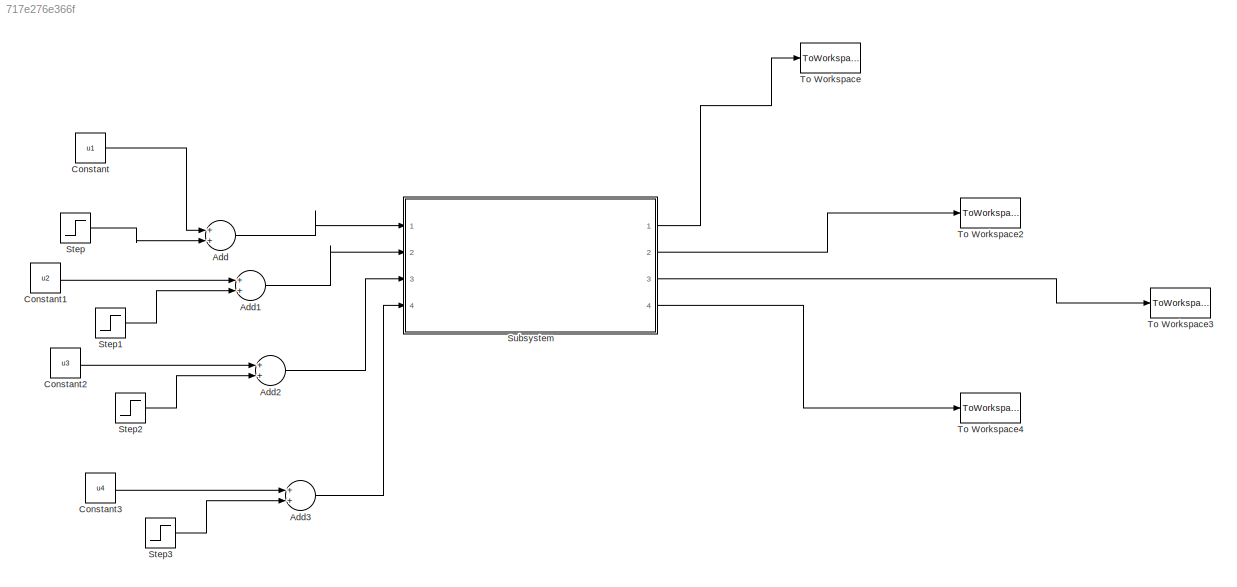
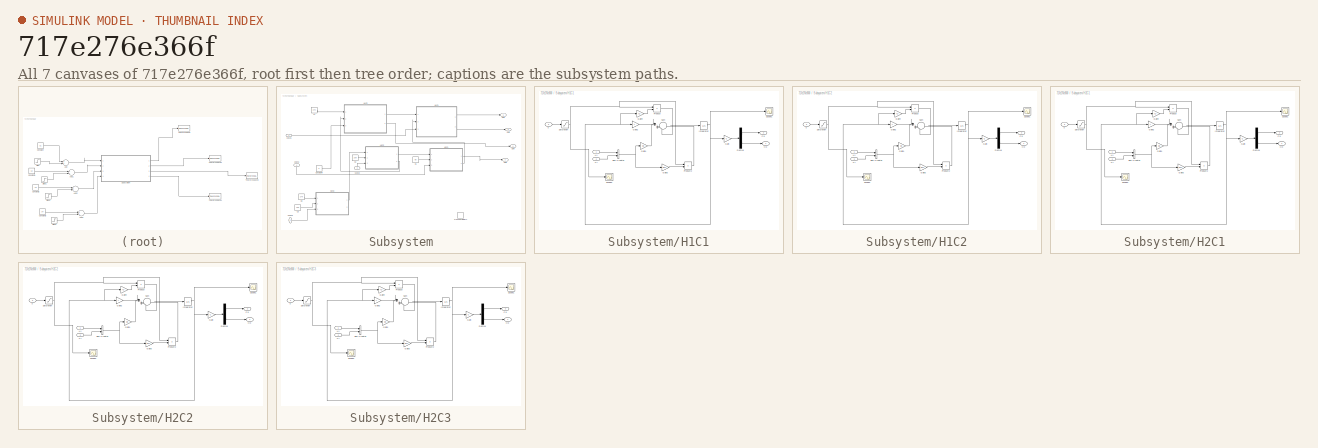
[diagram: thumbnail index - all 7 canvases of the model, root first then tree order]
MODEL slx_717e276e366f
KIND model
BLOCK [Sum] Add
  InputSameDT = off
  OutDataTypeStr = Inherit: Inherit via internal rule
  Ports = [2, 1]
  SaturateOnIntegerOverflow = off
BLOCK [Sum] Add1
  InputSameDT = off
  OutDataTypeStr = Inherit: Inherit via internal rule
  Ports = [2, 1]
  SaturateOnIntegerOverflow = off
BLOCK [Sum] Add2
  InputSameDT = off
  OutDataTypeStr = Inherit: Inherit via internal rule
  Ports = [2, 1]
  SaturateOnIntegerOverflow = off
BLOCK [Sum] Add3
  InputSameDT = off
  OutDataTypeStr = Inherit: Inherit via internal rule
  Ports = [2, 1]
  SaturateOnIntegerOverflow = off
BLOCK [Constant] Constant
  Value = u1
BLOCK [Constant] Constant1
  Value = u2
BLOCK [Constant] Constant2
  Value = u3
BLOCK [Constant] Constant3
  Value = u4
BLOCK [Step] Step
  After = stepu1
  SampleTime = 0
  Time = stepstart
BLOCK [Step] Step1
  After = stepu2
  SampleTime = 0
  Time = stepstart
BLOCK [Step] Step2
  After = stepu3
  SampleTime = 0
  Time = stepstart
BLOCK [Step] Step3
  After = stepu4
  SampleTime = 0
  Time = stepstart
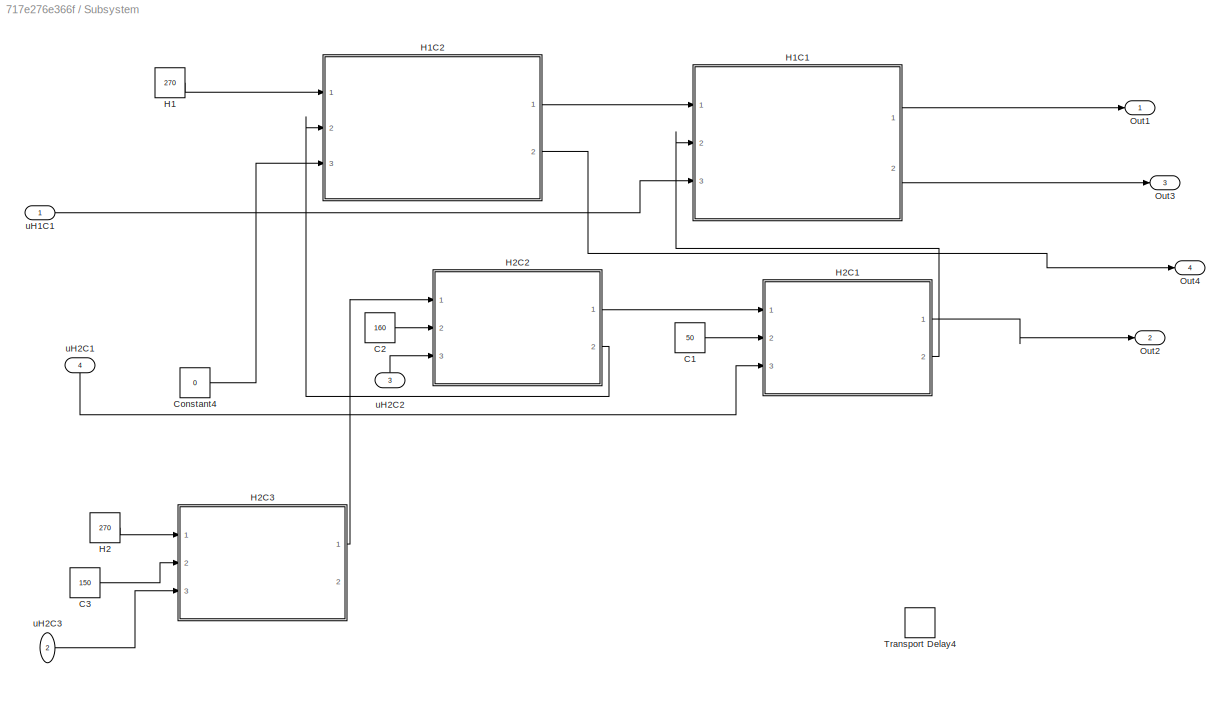
BLOCK [SubSystem] Subsystem
  Ports = [4, 4]
  RequestExecContextInheritance = off
BLOCK [Constant] Subsystem/C1
  Value = 50
BLOCK [Constant] Subsystem/C2
  Value = 160
BLOCK [Constant] Subsystem/C3
  Value = 150
BLOCK [Constant] Subsystem/Constant4
  Value = 0
BLOCK [Constant] Subsystem/H1
  Value = 270
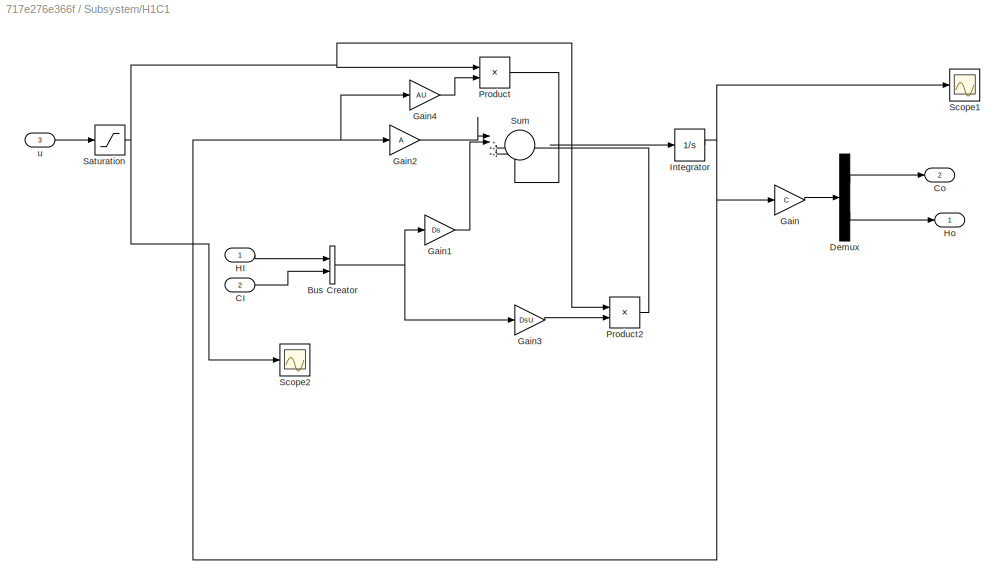
BLOCK [SubSystem] Subsystem/H1C1
  Ports = [3, 2]
  RequestExecContextInheritance = off
BLOCK [BusCreator] Subsystem/H1C1/Bus Creator
  DisplayOption = bar
  Inputs = 2
  Ports = [2, 1]
BLOCK [Inport] Subsystem/H1C1/CI
  IconDisplay = Port number
  Port = 2
BLOCK [Outport] Subsystem/H1C1/Co
  IconDisplay = Port number
  Port = 2
BLOCK [Demux] Subsystem/H1C1/Demux
  DisplayOption = bar
  Outputs = 2
  Ports = [1, 2]
BLOCK [Gain] Subsystem/H1C1/Gain
  Gain = C
  Multiplication = Matrix(K*u)
  OutDataTypeStr = Inherit: Inherit via internal rule
  ParamDataTypeStr = Inherit: Inherit via internal rule
  SaturateOnIntegerOverflow = off
BLOCK [Gain] Subsystem/H1C1/Gain1
  Gain = Ds
  Multiplication = Matrix(K*u)
  OutDataTypeStr = Inherit: Inherit via internal rule
  ParamDataTypeStr = Inherit: Inherit via internal rule
  SaturateOnIntegerOverflow = off
BLOCK [Gain] Subsystem/H1C1/Gain2
  Gain = A
  Multiplication = Matrix(K*u)
  OutDataTypeStr = Inherit: Inherit via internal rule
  ParamDataTypeStr = Inherit: Inherit via internal rule
  SaturateOnIntegerOverflow = off
BLOCK [Gain] Subsystem/H1C1/Gain3
  Gain = DsU
  Multiplication = Matrix(K*u)
  OutDataTypeStr = Inherit: Inherit via internal rule
  ParamDataTypeStr = Inherit: Inherit via internal rule
  SaturateOnIntegerOverflow = off
BLOCK [Gain] Subsystem/H1C1/Gain4
  Gain = AU
  Multiplication = Matrix(K*u)
  OutDataTypeStr = Inherit: Inherit via internal rule
  ParamDataTypeStr = Inherit: Inherit via internal rule
  SaturateOnIntegerOverflow = off
BLOCK [Inport] Subsystem/H1C1/HI
  IconDisplay = Port number
BLOCK [Outport] Subsystem/H1C1/Ho
  IconDisplay = Port number
BLOCK [Integrator] Subsystem/H1C1/Integrator
  InitialCondition = initT
  Ports = [1, 1]
BLOCK [Product] Subsystem/H1C1/Product
  InputSameDT = off
  OutDataTypeStr = Inherit: Inherit via internal rule
  Ports = [2, 1]
  RndMeth = Floor
  SaturateOnIntegerOverflow = off
BLOCK [Product] Subsystem/H1C1/Product2
  InputSameDT = off
  OutDataTypeStr = Inherit: Inherit via internal rule
  Ports = [2, 1]
  RndMeth = Floor
  SaturateOnIntegerOverflow = off
BLOCK [Saturate] Subsystem/H1C1/Saturation
  InputPortMap = u0
  LowerLimit = 0
  Ports = [1, 1]
  UpperLimit = 1
BLOCK [Scope] Subsystem/H1C1/Scope1
  Floating = off
  LegendLocations = 0.41857    -0.59079     0.44357      1.3788
  LimitDataPoints = off
  NumInputPorts = 1
  Ports = [1]
  SaveName = ScopeData4
  ShowLegends = on
  YMax = 220
  YMin = 60
BLOCK [Scope] Subsystem/H1C1/Scope2
  Floating = off
  NumInputPorts = 1
  Ports = [1]
  SaveName = ScopeData2
  ShowLegends = off
BLOCK [Sum] Subsystem/H1C1/Sum
  IconShape = round
  InputSameDT = off
  Inputs = |++++
  OutDataTypeStr = Inherit: Inherit via internal rule
  Ports = [4, 1]
  SaturateOnIntegerOverflow = off
BLOCK [Inport] Subsystem/H1C1/u
  IconDisplay = Port number
  Port = 3
BLOCK [SubSystem] Subsystem/H1C2
  Ports = [3, 2]
  RequestExecContextInheritance = off
BLOCK [BusCreator] Subsystem/H1C2/Bus Creator
  DisplayOption = bar
  Inputs = 2
  Ports = [2, 1]
BLOCK [Inport] Subsystem/H1C2/CI
  IconDisplay = Port number
  Port = 2
BLOCK [Outport] Subsystem/H1C2/Co
  IconDisplay = Port number
  Port = 2
BLOCK [Demux] Subsystem/H1C2/Demux
  DisplayOption = bar
  Outputs = 2
  Ports = [1, 2]
BLOCK [Gain] Subsystem/H1C2/Gain
  Gain = C
  Multiplication = Matrix(K*u)
  OutDataTypeStr = Inherit: Inherit via internal rule
  ParamDataTypeStr = Inherit: Inherit via internal rule
  SaturateOnIntegerOverflow = off
BLOCK [Gain] Subsystem/H1C2/Gain1
  Gain = Ds
  Multiplication = Matrix(K*u)
  OutDataTypeStr = Inherit: Inherit via internal rule
  ParamDataTypeStr = Inherit: Inherit via internal rule
  SaturateOnIntegerOverflow = off
BLOCK [Gain] Subsystem/H1C2/Gain2
  Gain = A
  Multiplication = Matrix(K*u)
  OutDataTypeStr = Inherit: Inherit via internal rule
  ParamDataTypeStr = Inherit: Inherit via internal rule
  SaturateOnIntegerOverflow = off
BLOCK [Gain] Subsystem/H1C2/Gain3
  Gain = DsU
  Multiplication = Matrix(K*u)
  OutDataTypeStr = Inherit: Inherit via internal rule
  ParamDataTypeStr = Inherit: Inherit via internal rule
  SaturateOnIntegerOverflow = off
BLOCK [Gain] Subsystem/H1C2/Gain4
  Gain = AU
  Multiplication = Matrix(K*u)
  OutDataTypeStr = Inherit: Inherit via internal rule
  ParamDataTypeStr = Inherit: Inherit via internal rule
  SaturateOnIntegerOverflow = off
BLOCK [Inport] Subsystem/H1C2/HI
  IconDisplay = Port number
BLOCK [Outport] Subsystem/H1C2/Ho
  IconDisplay = Port number
BLOCK [Integrator] Subsystem/H1C2/Integrator
  InitialCondition = initT
  Ports = [1, 1]
BLOCK [Product] Subsystem/H1C2/Product
  InputSameDT = off
  OutDataTypeStr = Inherit: Inherit via internal rule
  Ports = [2, 1]
  RndMeth = Floor
  SaturateOnIntegerOverflow = off
BLOCK [Product] Subsystem/H1C2/Product2
  InputSameDT = off
  OutDataTypeStr = Inherit: Inherit via internal rule
  Ports = [2, 1]
  RndMeth = Floor
  SaturateOnIntegerOverflow = off
BLOCK [Saturate] Subsystem/H1C2/Saturation
  InputPortMap = u0
  LowerLimit = 0
  Ports = [1, 1]
  UpperLimit = 1
BLOCK [Scope] Subsystem/H1C2/Scope1
  Floating = off
  LegendLocations = 0.41857    -0.59079     0.44357      1.3788
  LimitDataPoints = off
  NumInputPorts = 1
  Ports = [1]
  SaveName = ScopeData4
  ShowLegends = on
  YMax = 220
  YMin = 60
BLOCK [Scope] Subsystem/H1C2/Scope2
  Floating = off
  NumInputPorts = 1
  Ports = [1]
  SaveName = ScopeData2
  ShowLegends = off
BLOCK [Sum] Subsystem/H1C2/Sum
  IconShape = round
  InputSameDT = off
  Inputs = |++++
  OutDataTypeStr = Inherit: Inherit via internal rule
  Ports = [4, 1]
  SaturateOnIntegerOverflow = off
BLOCK [Inport] Subsystem/H1C2/u
  IconDisplay = Port number
  Port = 3
BLOCK [Constant] Subsystem/H2
  Value = 270
BLOCK [SubSystem] Subsystem/H2C1
  Ports = [3, 2]
  RequestExecContextInheritance = off
BLOCK [BusCreator] Subsystem/H2C1/Bus Creator
  DisplayOption = bar
  Inputs = 2
  Ports = [2, 1]
BLOCK [Inport] Subsystem/H2C1/CI
  IconDisplay = Port number
  Port = 2
BLOCK [Outport] Subsystem/H2C1/Co
  IconDisplay = Port number
  Port = 2
BLOCK [Demux] Subsystem/H2C1/Demux
  DisplayOption = bar
  Outputs = 2
  Ports = [1, 2]
BLOCK [Gain] Subsystem/H2C1/Gain
  Gain = C
  Multiplication = Matrix(K*u)
  OutDataTypeStr = Inherit: Inherit via internal rule
  ParamDataTypeStr = Inherit: Inherit via internal rule
  SaturateOnIntegerOverflow = off
BLOCK [Gain] Subsystem/H2C1/Gain1
  Gain = Ds
  Multiplication = Matrix(K*u)
  OutDataTypeStr = Inherit: Inherit via internal rule
  ParamDataTypeStr = Inherit: Inherit via internal rule
  SaturateOnIntegerOverflow = off
BLOCK [Gain] Subsystem/H2C1/Gain2
  Gain = A
  Multiplication = Matrix(K*u)
  OutDataTypeStr = Inherit: Inherit via internal rule
  ParamDataTypeStr = Inherit: Inherit via internal rule
  SaturateOnIntegerOverflow = off
BLOCK [Gain] Subsystem/H2C1/Gain3
  Gain = DsU
  Multiplication = Matrix(K*u)
  OutDataTypeStr = Inherit: Inherit via internal rule
  ParamDataTypeStr = Inherit: Inherit via internal rule
  SaturateOnIntegerOverflow = off
BLOCK [Gain] Subsystem/H2C1/Gain4
  Gain = AU
  Multiplication = Matrix(K*u)
  OutDataTypeStr = Inherit: Inherit via internal rule
  ParamDataTypeStr = Inherit: Inherit via internal rule
  SaturateOnIntegerOverflow = off
BLOCK [Inport] Subsystem/H2C1/HI
  IconDisplay = Port number
BLOCK [Outport] Subsystem/H2C1/Ho
  IconDisplay = Port number
BLOCK [Integrator] Subsystem/H2C1/Integrator
  InitialCondition = initT
  Ports = [1, 1]
BLOCK [Product] Subsystem/H2C1/Product
  InputSameDT = off
  OutDataTypeStr = Inherit: Inherit via internal rule
  Ports = [2, 1]
  RndMeth = Floor
  SaturateOnIntegerOverflow = off
BLOCK [Product] Subsystem/H2C1/Product2
  InputSameDT = off
  OutDataTypeStr = Inherit: Inherit via internal rule
  Ports = [2, 1]
  RndMeth = Floor
  SaturateOnIntegerOverflow = off
BLOCK [Saturate] Subsystem/H2C1/Saturation
  InputPortMap = u0
  LowerLimit = 0
  Ports = [1, 1]
  UpperLimit = 1
BLOCK [Scope] Subsystem/H2C1/Scope1
  Floating = off
  LegendLocations = 0.41857    -0.59079     0.44357      1.3788
  LimitDataPoints = off
  NumInputPorts = 1
  Ports = [1]
  SaveName = ScopeData4
  ShowLegends = on
  YMax = 220
  YMin = 60
BLOCK [Scope] Subsystem/H2C1/Scope2
  Floating = off
  NumInputPorts = 1
  Ports = [1]
  SaveName = ScopeData2
  ShowLegends = off
BLOCK [Sum] Subsystem/H2C1/Sum
  IconShape = round
  InputSameDT = off
  Inputs = |++++
  OutDataTypeStr = Inherit: Inherit via internal rule
  Ports = [4, 1]
  SaturateOnIntegerOverflow = off
BLOCK [Inport] Subsystem/H2C1/u
  IconDisplay = Port number
  Port = 3
BLOCK [SubSystem] Subsystem/H2C2
  Ports = [3, 2]
  RequestExecContextInheritance = off
BLOCK [BusCreator] Subsystem/H2C2/Bus Creator
  DisplayOption = bar
  Inputs = 2
  Ports = [2, 1]
BLOCK [Inport] Subsystem/H2C2/CI
  IconDisplay = Port number
  Port = 2
BLOCK [Outport] Subsystem/H2C2/Co
  IconDisplay = Port number
  Port = 2
BLOCK [Demux] Subsystem/H2C2/Demux
  DisplayOption = bar
  Outputs = 2
  Ports = [1, 2]
BLOCK [Gain] Subsystem/H2C2/Gain
  Gain = C
  Multiplication = Matrix(K*u)
  OutDataTypeStr = Inherit: Inherit via internal rule
  ParamDataTypeStr = Inherit: Inherit via internal rule
  SaturateOnIntegerOverflow = off
BLOCK [Gain] Subsystem/H2C2/Gain1
  Gain = Ds
  Multiplication = Matrix(K*u)
  OutDataTypeStr = Inherit: Inherit via internal rule
  ParamDataTypeStr = Inherit: Inherit via internal rule
  SaturateOnIntegerOverflow = off
BLOCK [Gain] Subsystem/H2C2/Gain2
  Gain = A
  Multiplication = Matrix(K*u)
  OutDataTypeStr = Inherit: Inherit via internal rule
  ParamDataTypeStr = Inherit: Inherit via internal rule
  SaturateOnIntegerOverflow = off
BLOCK [Gain] Subsystem/H2C2/Gain3
  Gain = DsU
  Multiplication = Matrix(K*u)
  OutDataTypeStr = Inherit: Inherit via internal rule
  ParamDataTypeStr = Inherit: Inherit via internal rule
  SaturateOnIntegerOverflow = off
BLOCK [Gain] Subsystem/H2C2/Gain4
  Gain = AU
  Multiplication = Matrix(K*u)
  OutDataTypeStr = Inherit: Inherit via internal rule
  ParamDataTypeStr = Inherit: Inherit via internal rule
  SaturateOnIntegerOverflow = off
BLOCK [Inport] Subsystem/H2C2/HI
  IconDisplay = Port number
BLOCK [Outport] Subsystem/H2C2/Ho
  IconDisplay = Port number
BLOCK [Integrator] Subsystem/H2C2/Integrator
  InitialCondition = initT
  Ports = [1, 1]
BLOCK [Product] Subsystem/H2C2/Product
  InputSameDT = off
  OutDataTypeStr = Inherit: Inherit via internal rule
  Ports = [2, 1]
  RndMeth = Floor
  SaturateOnIntegerOverflow = off
BLOCK [Product] Subsystem/H2C2/Product2
  InputSameDT = off
  OutDataTypeStr = Inherit: Inherit via internal rule
  Ports = [2, 1]
  RndMeth = Floor
  SaturateOnIntegerOverflow = off
BLOCK [Saturate] Subsystem/H2C2/Saturation
  InputPortMap = u0
  LowerLimit = 0
  Ports = [1, 1]
  UpperLimit = 1
BLOCK [Scope] Subsystem/H2C2/Scope1
  Floating = off
  LegendLocations = 0.41857    -0.59079     0.44357      1.3788
  LimitDataPoints = off
  NumInputPorts = 1
  Ports = [1]
  SaveName = ScopeData4
  ShowLegends = on
  YMax = 220
  YMin = 60
BLOCK [Scope] Subsystem/H2C2/Scope2
  Floating = off
  NumInputPorts = 1
  Ports = [1]
  SaveName = ScopeData2
  ShowLegends = off
BLOCK [Sum] Subsystem/H2C2/Sum
  IconShape = round
  InputSameDT = off
  Inputs = |++++
  OutDataTypeStr = Inherit: Inherit via internal rule
  Ports = [4, 1]
  SaturateOnIntegerOverflow = off
BLOCK [Inport] Subsystem/H2C2/u
  IconDisplay = Port number
  Port = 3
BLOCK [SubSystem] Subsystem/H2C3
  Ports = [3, 2]
  RequestExecContextInheritance = off
BLOCK [BusCreator] Subsystem/H2C3/Bus Creator
  DisplayOption = bar
  Inputs = 2
  Ports = [2, 1]
BLOCK [Inport] Subsystem/H2C3/CI
  IconDisplay = Port number
  Port = 2
BLOCK [Outport] Subsystem/H2C3/Co
  IconDisplay = Port number
  Port = 2
BLOCK [Demux] Subsystem/H2C3/Demux
  DisplayOption = bar
  Outputs = 2
  Ports = [1, 2]
BLOCK [Gain] Subsystem/H2C3/Gain
  Gain = C
  Multiplication = Matrix(K*u)
  OutDataTypeStr = Inherit: Inherit via internal rule
  ParamDataTypeStr = Inherit: Inherit via internal rule
  SaturateOnIntegerOverflow = off
BLOCK [Gain] Subsystem/H2C3/Gain1
  Gain = Ds
  Multiplication = Matrix(K*u)
  OutDataTypeStr = Inherit: Inherit via internal rule
  ParamDataTypeStr = Inherit: Inherit via internal rule
  SaturateOnIntegerOverflow = off
BLOCK [Gain] Subsystem/H2C3/Gain2
  Gain = A
  Multiplication = Matrix(K*u)
  OutDataTypeStr = Inherit: Inherit via internal rule
  ParamDataTypeStr = Inherit: Inherit via internal rule
  SaturateOnIntegerOverflow = off
BLOCK [Gain] Subsystem/H2C3/Gain3
  Gain = DsU
  Multiplication = Matrix(K*u)
  OutDataTypeStr = Inherit: Inherit via internal rule
  ParamDataTypeStr = Inherit: Inherit via internal rule
  SaturateOnIntegerOverflow = off
BLOCK [Gain] Subsystem/H2C3/Gain4
  Gain = AU
  Multiplication = Matrix(K*u)
  OutDataTypeStr = Inherit: Inherit via internal rule
  ParamDataTypeStr = Inherit: Inherit via internal rule
  SaturateOnIntegerOverflow = off
BLOCK [Inport] Subsystem/H2C3/HI
  IconDisplay = Port number
BLOCK [Outport] Subsystem/H2C3/Ho
  IconDisplay = Port number
BLOCK [Integrator] Subsystem/H2C3/Integrator
  InitialCondition = initT
  Ports = [1, 1]
BLOCK [Product] Subsystem/H2C3/Product
  InputSameDT = off
  OutDataTypeStr = Inherit: Inherit via internal rule
  Ports = [2, 1]
  RndMeth = Floor
  SaturateOnIntegerOverflow = off
BLOCK [Product] Subsystem/H2C3/Product2
  InputSameDT = off
  OutDataTypeStr = Inherit: Inherit via internal rule
  Ports = [2, 1]
  RndMeth = Floor
  SaturateOnIntegerOverflow = off
BLOCK [Saturate] Subsystem/H2C3/Saturation
  InputPortMap = u0
  LowerLimit = 0
  Ports = [1, 1]
  UpperLimit = 1
BLOCK [Scope] Subsystem/H2C3/Scope1
  Floating = off
  LegendLocations = 0.41857    -0.59079     0.44357      1.3788
  LimitDataPoints = off
  NumInputPorts = 1
  Ports = [1]
  SaveName = ScopeData4
  ShowLegends = on
  YMax = 220
  YMin = 60
BLOCK [Scope] Subsystem/H2C3/Scope2
  Floating = off
  NumInputPorts = 1
  Ports = [1]
  SaveName = ScopeData2
  ShowLegends = off
BLOCK [Sum] Subsystem/H2C3/Sum
  IconShape = round
  InputSameDT = off
  Inputs = |++++
  OutDataTypeStr = Inherit: Inherit via internal rule
  Ports = [4, 1]
  SaturateOnIntegerOverflow = off
BLOCK [Inport] Subsystem/H2C3/u
  IconDisplay = Port number
  Port = 3
BLOCK [Outport] Subsystem/Out1
  IconDisplay = Port number
BLOCK [Outport] Subsystem/Out2
  IconDisplay = Port number
  Port = 2
BLOCK [Outport] Subsystem/Out3
  IconDisplay = Port number
  Port = 3
BLOCK [Outport] Subsystem/Out4
  IconDisplay = Port number
  Port = 4
BLOCK [TransportDelay] Subsystem/Transport Delay4
  Ports = [1, 1]
BLOCK [Inport] Subsystem/uH1C1
  IconDisplay = Port number
BLOCK [Inport] Subsystem/uH2C1
  IconDisplay = Port number
  Port = 4
BLOCK [Inport] Subsystem/uH2C2
  IconDisplay = Port number
  Port = 3
BLOCK [Inport] Subsystem/uH2C3
  IconDisplay = Port number
  Port = 2
BLOCK [ToWorkspace] To Workspace
  FixptAsFi = on
  MaxDataPoints = inf
  Ports = [1]
  SampleTime = -1
  Save2DSignal = 3-D array (concatenate along third dimension)
  SaveFormat = Timeseries
  VariableName = T1
BLOCK [ToWorkspace] To Workspace2
  FixptAsFi = on
  MaxDataPoints = inf
  Ports = [1]
  SampleTime = -1
  Save2DSignal = 3-D array (concatenate along third dimension)
  SaveFormat = Timeseries
  VariableName = T2
BLOCK [ToWorkspace] To Workspace3
  FixptAsFi = on
  MaxDataPoints = inf
  Ports = [1]
  SampleTime = -1
  Save2DSignal = 3-D array (concatenate along third dimension)
  SaveFormat = Timeseries
  VariableName = T3
BLOCK [ToWorkspace] To Workspace4
  FixptAsFi = on
  MaxDataPoints = inf
  Ports = [1]
  SampleTime = -1
  Save2DSignal = 3-D array (concatenate along third dimension)
  SaveFormat = Timeseries
  VariableName = T4
LINE Add1:1 -> Subsystem:2
LINE Add2:1 -> Subsystem:3
LINE Add3:1 -> Subsystem:4
LINE Add:1 -> Subsystem:1
LINE Constant1:1 -> Add1:1
LINE Constant2:1 -> Add2:1
LINE Constant3:1 -> Add3:1
LINE Constant:1 -> Add:1
LINE Step1:1 -> Add1:2
LINE Step2:1 -> Add2:2
LINE Step3:1 -> Add3:2
LINE Step:1 -> Add:2
LINE Subsystem/C1:1 -> Subsystem/H2C1:2
LINE Subsystem/C2:1 -> Subsystem/H2C2:2
LINE Subsystem/C3:1 -> Subsystem/H2C3:2
LINE Subsystem/Constant4:1 -> Subsystem/H1C2:3
LINE Subsystem/H1:1 -> Subsystem/H1C2:1
NET Subsystem/H1C1/Bus Creator:1 -> Subsystem/H1C1/Gain1:1, Subsystem/H1C1/Gain3:1
LINE Subsystem/H1C1/CI:1 -> Subsystem/H1C1/Bus Creator:2
LINE Subsystem/H1C1/Demux:1 -> Subsystem/H1C1/Co:1
LINE Subsystem/H1C1/Demux:2 -> Subsystem/H1C1/Ho:1
LINE Subsystem/H1C1/Gain1:1 -> Subsystem/H1C1/Sum:2
LINE Subsystem/H1C1/Gain2:1 -> Subsystem/H1C1/Sum:1
LINE Subsystem/H1C1/Gain3:1 -> Subsystem/H1C1/Product2:2
LINE Subsystem/H1C1/Gain4:1 -> Subsystem/H1C1/Product:2
LINE Subsystem/H1C1/Gain:1 -> Subsystem/H1C1/Demux:1
LINE Subsystem/H1C1/HI:1 -> Subsystem/H1C1/Bus Creator:1
NET Subsystem/H1C1/Integrator:1 -> Subsystem/H1C1/Gain2:1, Subsystem/H1C1/Gain4:1, Subsystem/H1C1/Gain:1, Subsystem/H1C1/Scope1:1
LINE Subsystem/H1C1/Product2:1 -> Subsystem/H1C1/Sum:3
LINE Subsystem/H1C1/Product:1 -> Subsystem/H1C1/Sum:4
NET Subsystem/H1C1/Saturation:1 -> Subsystem/H1C1/Product2:1, Subsystem/H1C1/Product:1, Subsystem/H1C1/Scope2:1
LINE Subsystem/H1C1/Sum:1 -> Subsystem/H1C1/Integrator:1
LINE Subsystem/H1C1/u:1 -> Subsystem/H1C1/Saturation:1
LINE Subsystem/H1C1:1 -> Subsystem/Out1:1
LINE Subsystem/H1C1:2 -> Subsystem/Out3:1
NET Subsystem/H1C2/Bus Creator:1 -> Subsystem/H1C2/Gain1:1, Subsystem/H1C2/Gain3:1
LINE Subsystem/H1C2/CI:1 -> Subsystem/H1C2/Bus Creator:2
LINE Subsystem/H1C2/Demux:1 -> Subsystem/H1C2/Co:1
LINE Subsystem/H1C2/Demux:2 -> Subsystem/H1C2/Ho:1
LINE Subsystem/H1C2/Gain1:1 -> Subsystem/H1C2/Sum:2
LINE Subsystem/H1C2/Gain2:1 -> Subsystem/H1C2/Sum:1
LINE Subsystem/H1C2/Gain3:1 -> Subsystem/H1C2/Product2:2
LINE Subsystem/H1C2/Gain4:1 -> Subsystem/H1C2/Product:2
LINE Subsystem/H1C2/Gain:1 -> Subsystem/H1C2/Demux:1
LINE Subsystem/H1C2/HI:1 -> Subsystem/H1C2/Bus Creator:1
NET Subsystem/H1C2/Integrator:1 -> Subsystem/H1C2/Gain2:1, Subsystem/H1C2/Gain4:1, Subsystem/H1C2/Gain:1, Subsystem/H1C2/Scope1:1
LINE Subsystem/H1C2/Product2:1 -> Subsystem/H1C2/Sum:3
LINE Subsystem/H1C2/Product:1 -> Subsystem/H1C2/Sum:4
NET Subsystem/H1C2/Saturation:1 -> Subsystem/H1C2/Product2:1, Subsystem/H1C2/Product:1, Subsystem/H1C2/Scope2:1
LINE Subsystem/H1C2/Sum:1 -> Subsystem/H1C2/Integrator:1
LINE Subsystem/H1C2/u:1 -> Subsystem/H1C2/Saturation:1
LINE Subsystem/H1C2:1 -> Subsystem/H1C1:1
LINE Subsystem/H1C2:2 -> Subsystem/Out4:1
LINE Subsystem/H2:1 -> Subsystem/H2C3:1
NET Subsystem/H2C1/Bus Creator:1 -> Subsystem/H2C1/Gain1:1, Subsystem/H2C1/Gain3:1
LINE Subsystem/H2C1/CI:1 -> Subsystem/H2C1/Bus Creator:2
LINE Subsystem/H2C1/Demux:1 -> Subsystem/H2C1/Co:1
LINE Subsystem/H2C1/Demux:2 -> Subsystem/H2C1/Ho:1
LINE Subsystem/H2C1/Gain1:1 -> Subsystem/H2C1/Sum:2
LINE Subsystem/H2C1/Gain2:1 -> Subsystem/H2C1/Sum:1
LINE Subsystem/H2C1/Gain3:1 -> Subsystem/H2C1/Product2:2
LINE Subsystem/H2C1/Gain4:1 -> Subsystem/H2C1/Product:2
LINE Subsystem/H2C1/Gain:1 -> Subsystem/H2C1/Demux:1
LINE Subsystem/H2C1/HI:1 -> Subsystem/H2C1/Bus Creator:1
NET Subsystem/H2C1/Integrator:1 -> Subsystem/H2C1/Gain2:1, Subsystem/H2C1/Gain4:1, Subsystem/H2C1/Gain:1, Subsystem/H2C1/Scope1:1
LINE Subsystem/H2C1/Product2:1 -> Subsystem/H2C1/Sum:3
LINE Subsystem/H2C1/Product:1 -> Subsystem/H2C1/Sum:4
NET Subsystem/H2C1/Saturation:1 -> Subsystem/H2C1/Product2:1, Subsystem/H2C1/Product:1, Subsystem/H2C1/Scope2:1
LINE Subsystem/H2C1/Sum:1 -> Subsystem/H2C1/Integrator:1
LINE Subsystem/H2C1/u:1 -> Subsystem/H2C1/Saturation:1
LINE Subsystem/H2C1:1 -> Subsystem/Out2:1
LINE Subsystem/H2C1:2 -> Subsystem/H1C1:2
NET Subsystem/H2C2/Bus Creator:1 -> Subsystem/H2C2/Gain1:1, Subsystem/H2C2/Gain3:1
LINE Subsystem/H2C2/CI:1 -> Subsystem/H2C2/Bus Creator:2
LINE Subsystem/H2C2/Demux:1 -> Subsystem/H2C2/Co:1
LINE Subsystem/H2C2/Demux:2 -> Subsystem/H2C2/Ho:1
LINE Subsystem/H2C2/Gain1:1 -> Subsystem/H2C2/Sum:2
LINE Subsystem/H2C2/Gain2:1 -> Subsystem/H2C2/Sum:1
LINE Subsystem/H2C2/Gain3:1 -> Subsystem/H2C2/Product2:2
LINE Subsystem/H2C2/Gain4:1 -> Subsystem/H2C2/Product:2
LINE Subsystem/H2C2/Gain:1 -> Subsystem/H2C2/Demux:1
LINE Subsystem/H2C2/HI:1 -> Subsystem/H2C2/Bus Creator:1
NET Subsystem/H2C2/Integrator:1 -> Subsystem/H2C2/Gain2:1, Subsystem/H2C2/Gain4:1, Subsystem/H2C2/Gain:1, Subsystem/H2C2/Scope1:1
LINE Subsystem/H2C2/Product2:1 -> Subsystem/H2C2/Sum:3
LINE Subsystem/H2C2/Product:1 -> Subsystem/H2C2/Sum:4
NET Subsystem/H2C2/Saturation:1 -> Subsystem/H2C2/Product2:1, Subsystem/H2C2/Product:1, Subsystem/H2C2/Scope2:1
LINE Subsystem/H2C2/Sum:1 -> Subsystem/H2C2/Integrator:1
LINE Subsystem/H2C2/u:1 -> Subsystem/H2C2/Saturation:1
LINE Subsystem/H2C2:1 -> Subsystem/H2C1:1
LINE Subsystem/H2C2:2 -> Subsystem/H1C2:2
NET Subsystem/H2C3/Bus Creator:1 -> Subsystem/H2C3/Gain1:1, Subsystem/H2C3/Gain3:1
LINE Subsystem/H2C3/CI:1 -> Subsystem/H2C3/Bus Creator:2
LINE Subsystem/H2C3/Demux:1 -> Subsystem/H2C3/Co:1
LINE Subsystem/H2C3/Demux:2 -> Subsystem/H2C3/Ho:1
LINE Subsystem/H2C3/Gain1:1 -> Subsystem/H2C3/Sum:2
LINE Subsystem/H2C3/Gain2:1 -> Subsystem/H2C3/Sum:1
LINE Subsystem/H2C3/Gain3:1 -> Subsystem/H2C3/Product2:2
LINE Subsystem/H2C3/Gain4:1 -> Subsystem/H2C3/Product:2
LINE Subsystem/H2C3/Gain:1 -> Subsystem/H2C3/Demux:1
LINE Subsystem/H2C3/HI:1 -> Subsystem/H2C3/Bus Creator:1
NET Subsystem/H2C3/Integrator:1 -> Subsystem/H2C3/Gain2:1, Subsystem/H2C3/Gain4:1, Subsystem/H2C3/Gain:1, Subsystem/H2C3/Scope1:1
LINE Subsystem/H2C3/Product2:1 -> Subsystem/H2C3/Sum:3
LINE Subsystem/H2C3/Product:1 -> Subsystem/H2C3/Sum:4
NET Subsystem/H2C3/Saturation:1 -> Subsystem/H2C3/Product2:1, Subsystem/H2C3/Product:1, Subsystem/H2C3/Scope2:1
LINE Subsystem/H2C3/Sum:1 -> Subsystem/H2C3/Integrator:1
LINE Subsystem/H2C3/u:1 -> Subsystem/H2C3/Saturation:1
LINE Subsystem/H2C3:1 -> Subsystem/H2C2:1
LINE Subsystem/uH1C1:1 -> Subsystem/H1C1:3
LINE Subsystem/uH2C1:1 -> Subsystem/H2C1:3
LINE Subsystem/uH2C2:1 -> Subsystem/H2C2:3
LINE Subsystem/uH2C3:1 -> Subsystem/H2C3:3
LINE Subsystem:1 -> To Workspace:1
LINE Subsystem:2 -> To Workspace2:1
LINE Subsystem:3 -> To Workspace3:1
LINE Subsystem:4 -> To Workspace4:1
note: NET lines group one-source signal fan-out (src -> all destinations, sorted); 1:1 wires keep LINE
